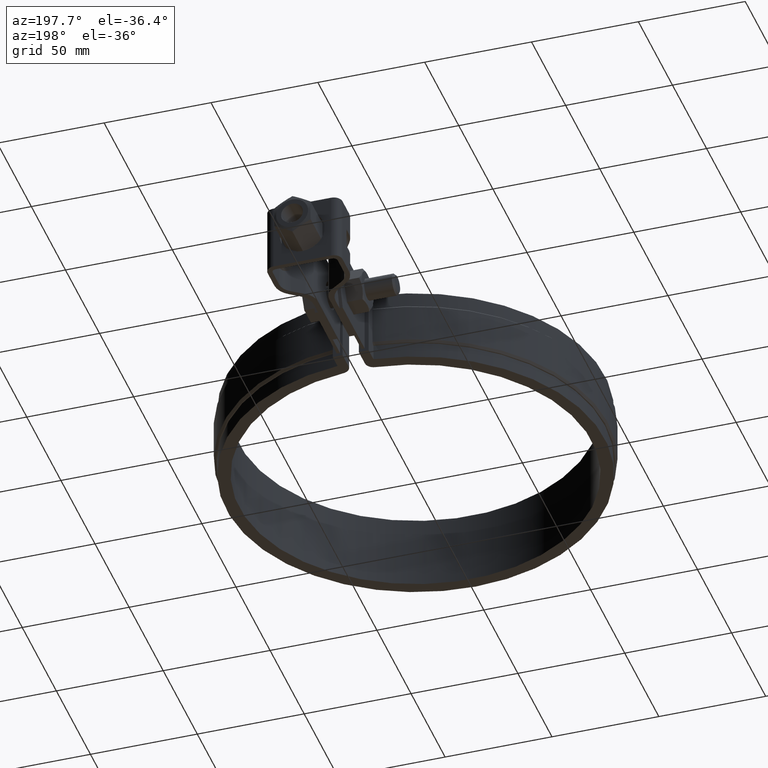
[diagram: clean part render]
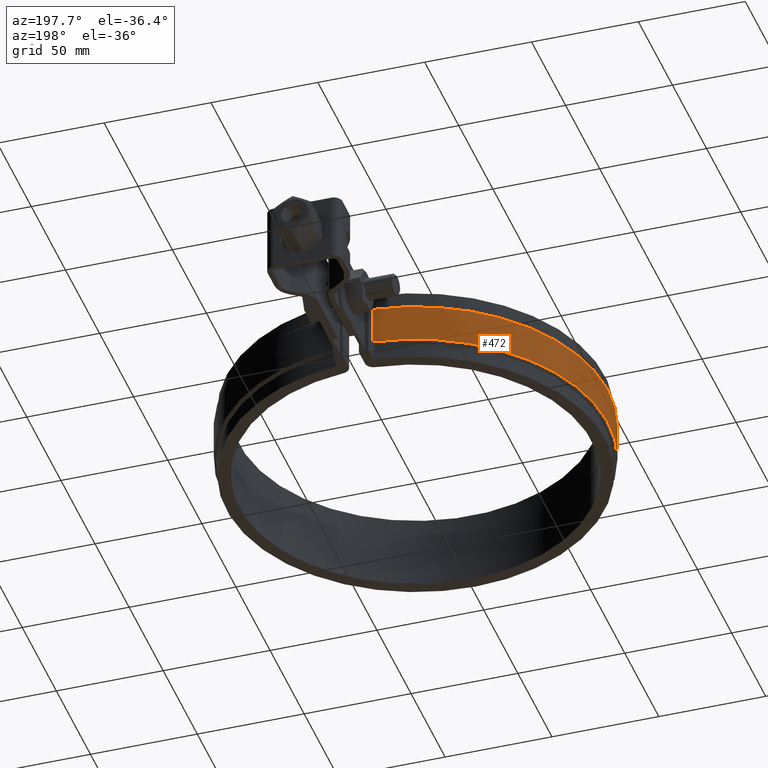
[diagram: same view with one face highlighted and labeled with its STEP entity id]
A machine part, auxiliary view. The second image highlights one B-rep face of the part: STEP entity #472.
In plain terms, the highlighted cylindrical surface (partial cylindrical patch) has radius 90 mm, axis along (0, 0, -1).
Its self-contained STEP definition (entity closure, byte-faithful):
#472 = ADVANCED_FACE( '', ( #842 ), #843, .T. );
#842 = FACE_OUTER_BOUND( '', #1977, .T. );
#843 = CYLINDRICAL_SURFACE( '', #1978, 90.0000000000000 );
#1977 = EDGE_LOOP( '', ( #4784, #4785, #4786, #4787 ) );
#1978 = AXIS2_PLACEMENT_3D( '', #4788, #4789, #4790 );
#4784 = ORIENTED_EDGE( '', *, *, #5406, .T. );
#4785 = ORIENTED_EDGE( '', *, *, #5384, .T. );
#4786 = ORIENTED_EDGE( '', *, *, #5364, .F. );
#4787 = ORIENTED_EDGE( '', *, *, #5374, .T. );
#4788 = CARTESIAN_POINT( '', ( 0.000000000000000, 0.000000000000000, -26.0000000000000 ) );
#4789 = DIRECTION( '', ( 0.000000000000000, 0.000000000000000, -1.00000000000000 ) );
#4790 = DIRECTION( '', ( 0.280000000000000, 0.960000000000000, 0.000000000000000 ) );
#5364 = EDGE_CURVE( '', #6114, #6116, #6117, .T. );
#5374 = EDGE_CURVE( '', #6114, #6130, #6132, .F. );
#5384 = EDGE_CURVE( '', #6144, #6116, #6148, .T. );
#5406 = EDGE_CURVE( '', #6130, #6144, #6182, .T. );
#6114 = VERTEX_POINT( '', #9337 );
#6116 = VERTEX_POINT( '', #9342 );
#6117 = LINE( '', #9343, #9344 );
#6130 = VERTEX_POINT( '', #9366 );
#6132 = CIRCLE( '', #9369, 90.0000000000000 );
#6144 = VERTEX_POINT( '', #9385 );
#6148 = CIRCLE( '', #9390, 90.0000000000000 );
#6182 = LINE( '', #9436, #9437 );
#9337 = CARTESIAN_POINT( '', ( -8.40000000000005, 89.6071425724534, -25.0000000000000 ) );
#9342 = CARTESIAN_POINT( '', ( -8.40000000000005, 89.6071425724534, -7.00000000000000 ) );
#9343 = CARTESIAN_POINT( '', ( -8.40000000000005, 89.6071425724534, -26.0000000000000 ) );
#9344 = VECTOR( '', #10051, 1000.00000000000 );
#9366 = CARTESIAN_POINT( '', ( -25.2000000000000, -86.4000000000000, -25.0000000000000 ) );
#9369 = AXIS2_PLACEMENT_3D( '', #10062, #10063, #10064 );
#9385 = CARTESIAN_POINT( '', ( -25.2000000000000, -86.4000000000000, -7.00000000000000 ) );
#9390 = AXIS2_PLACEMENT_3D( '', #10082, #10083, #10084 );
#9436 = CARTESIAN_POINT( '', ( -25.2000000000000, -86.4000000000000, -26.0000000000000 ) );
#9437 = VECTOR( '', #10124, 1000.00000000000 );
#10051 = DIRECTION( '', ( 0.000000000000000, 0.000000000000000, 1.00000000000000 ) );
#10062 = CARTESIAN_POINT( '', ( 0.000000000000000, 0.000000000000000, -25.0000000000000 ) );
#10063 = DIRECTION( '', ( 0.000000000000000, 0.000000000000000, -1.00000000000000 ) );
#10064 = DIRECTION( '', ( -1.00000000000000, 0.000000000000000, 0.000000000000000 ) );
#10082 = CARTESIAN_POINT( '', ( 0.000000000000000, 0.000000000000000, -7.00000000000000 ) );
#10083 = DIRECTION( '', ( 0.000000000000000, 0.000000000000000, -1.00000000000000 ) );
#10084 = DIRECTION( '', ( -1.00000000000000, 0.000000000000000, 0.000000000000000 ) );
#10124 = DIRECTION( '', ( 0.000000000000000, 0.000000000000000, 1.00000000000000 ) );